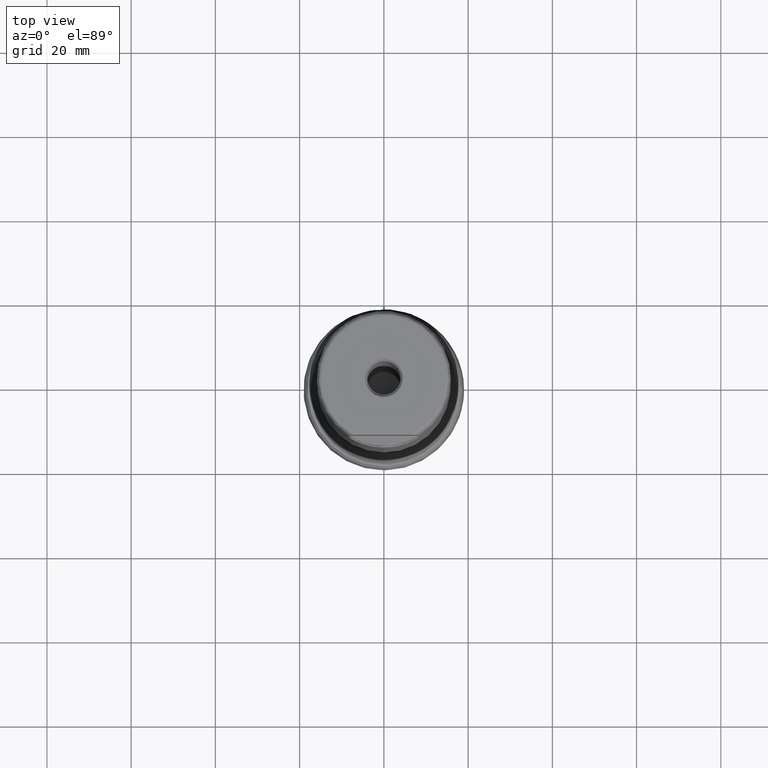
[diagram: clean part render]
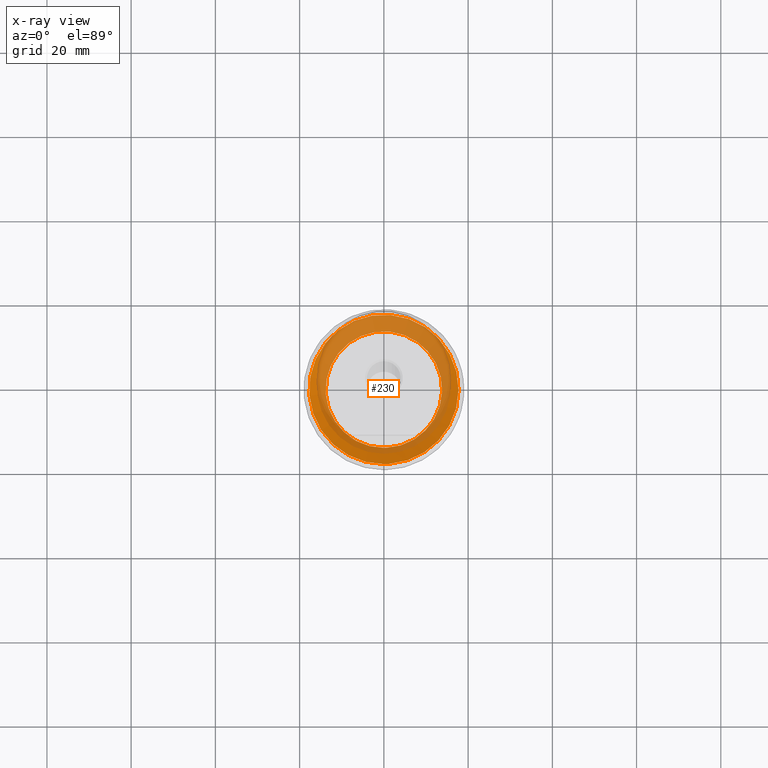
[diagram: x-ray — body ghosted, one internal face saturated and labeled with its STEP entity id]
A machine part, top view, then the same camera in x-ray: the body is ghosted and one INTERNAL B-rep face — a face not visible from any outside direction — is saturated and labeled: STEP entity #230.
In plain terms, the highlighted face is a SurfaceOfRevolution surface.
Its self-contained STEP definition (entity closure, byte-faithful):
#121=SURFACE_OF_REVOLUTION('',#804,#142);
#142=AXIS1_PLACEMENT('',#1616,#1056);
#230=ADVANCED_FACE('',(#353,#354),#121,.F.);
#280=CIRCLE('',#878,17.7296961327996);
#281=CIRCLE('',#879,13.8333362158921);
#353=FACE_BOUND('',#443,.T.);
#354=FACE_BOUND('',#444,.T.);
#443=EDGE_LOOP('',(#620));
#444=EDGE_LOOP('',(#621));
#620=ORIENTED_EDGE('',*,*,#756,.T.);
#621=ORIENTED_EDGE('',*,*,#757,.F.);
#688=VERTEX_POINT('',#1589);
#689=VERTEX_POINT('',#1603);
#756=EDGE_CURVE('',#688,#688,#280,.T.);
#757=EDGE_CURVE('',#689,#689,#281,.T.);
#804=B_SPLINE_CURVE_WITH_KNOTS('',3,(#1604,#1605,#1606,#1607,#1608,#1609,
#1610,#1611,#1612,#1613,#1614,#1615),.UNSPECIFIED.,.F.,.F.,(4,1,1,1,1,1,
1,1,1,4),(0.,0.221418157861957,0.365983083750147,0.510548009638337,0.655112935526527,
0.799677861414718,0.871960324358813,0.90810155583086,0.944242787302908,
1.),.UNSPECIFIED.);
#878=AXIS2_PLACEMENT_3D('',#1588,#1051,#1052);
#879=AXIS2_PLACEMENT_3D('',#1602,#1054,#1055);
#1051=DIRECTION('',(0.,1.17145536458252E-15,1.));
#1052=DIRECTION('',(0.,-1.,1.17411384582115E-15));
#1054=DIRECTION('',(0.,1.17145536458252E-15,1.));
#1055=DIRECTION('',(0.,-1.,1.19131587381265E-15));
#1056=DIRECTION('',(0.,1.17145536458252E-15,1.));
#1588=CARTESIAN_POINT('',(0.,8.5735685095396E-15,7.31873255161966));
#1589=CARTESIAN_POINT('',(0.,-17.7296961327996,7.31873255161968));
#1602=CARTESIAN_POINT('',(0.,6.07765453604987E-15,5.18812301330473));
#1603=CARTESIAN_POINT('',(0.,-13.8333362158921,5.18812301330475));
#1604=CARTESIAN_POINT('',(13.7246977279668,-1.73027958880423,5.1881233091924));
#1605=CARTESIAN_POINT('',(14.0082405570873,-1.7298387403734,5.35599977787551));
#1606=CARTESIAN_POINT('',(14.4788159576323,-1.72968079193832,5.63026818596257));
#1607=CARTESIAN_POINT('',(15.1413340919188,-1.73133418273666,6.00220472589755));
#1608=CARTESIAN_POINT('',(15.7083018207793,-1.73405819245577,6.31058727418813));
#1609=CARTESIAN_POINT('',(16.2788358738572,-1.7379337971363,6.61231961001669));
#1610=CARTESIAN_POINT('',(16.7558880874491,-1.7416057068774,6.86069731612945));
#1611=CARTESIAN_POINT('',(17.0903403026645,-1.74462120435826,7.03357011957152));
#1612=CARTESIAN_POINT('',(17.2816079996076,-1.74589157701397,7.13201784257779));
#1613=CARTESIAN_POINT('',(17.4512882621098,-1.7487310187959,7.21907289700908));
#1614=CARTESIAN_POINT('',(17.5723096107671,-1.73389083382156,7.28112534415064));
#1615=CARTESIAN_POINT('',(17.6456805729356,-1.7239727606125,7.31873255161966));
#1616=CARTESIAN_POINT('',(0.,0.,0.));